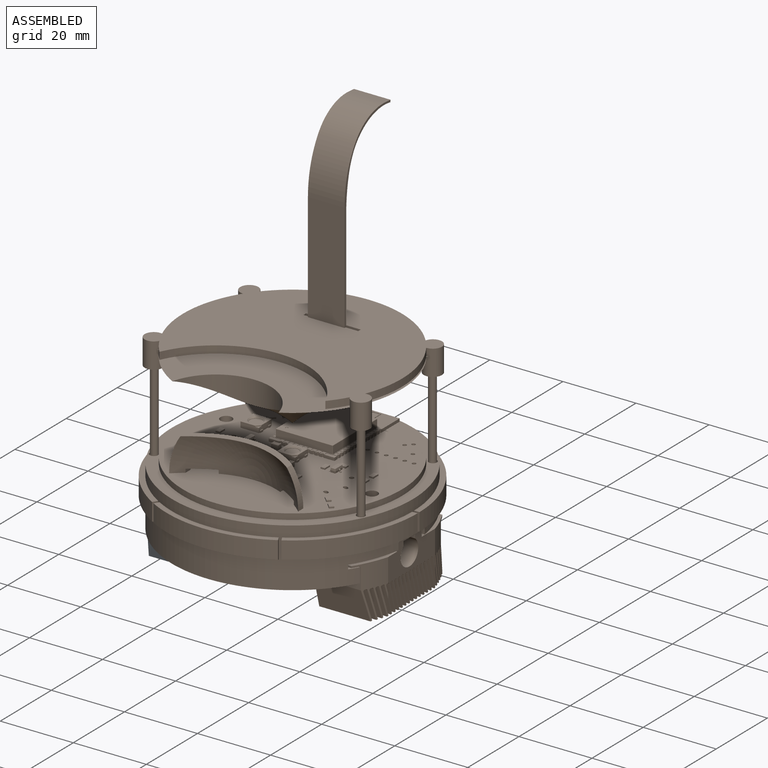
[diagram: assembled view]
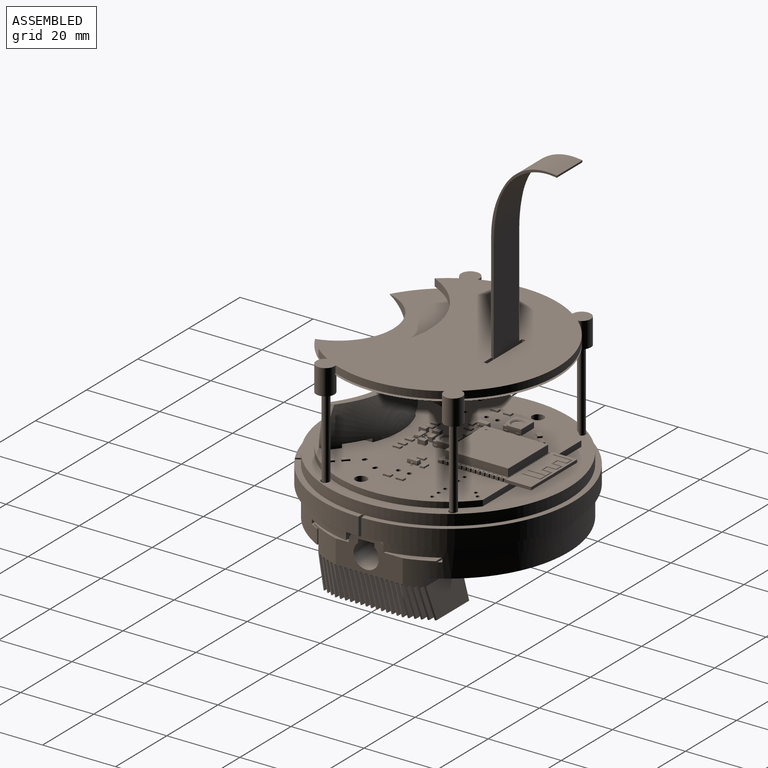
[diagram: assembled view, second angle]
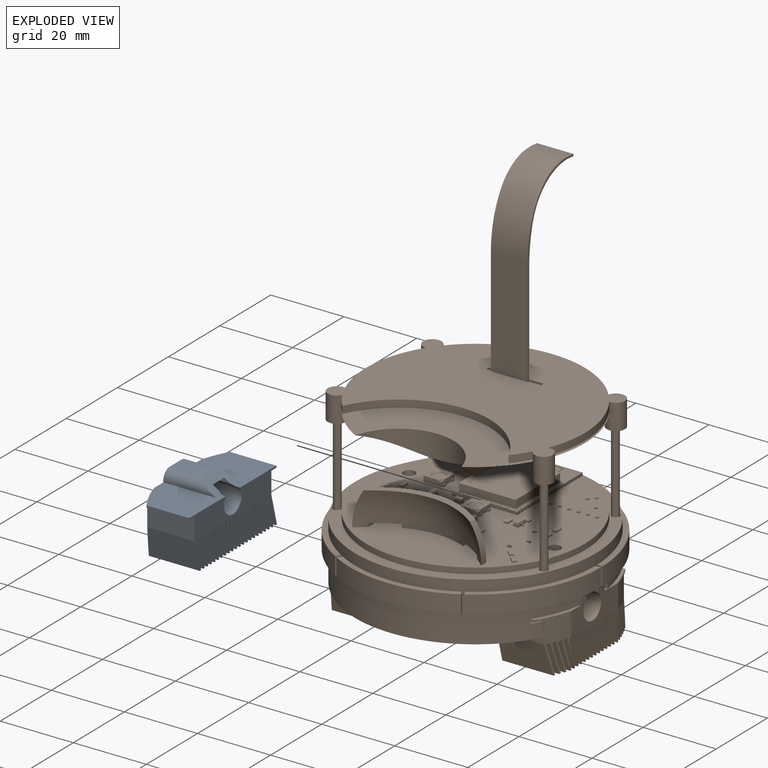
[diagram: exploded view]
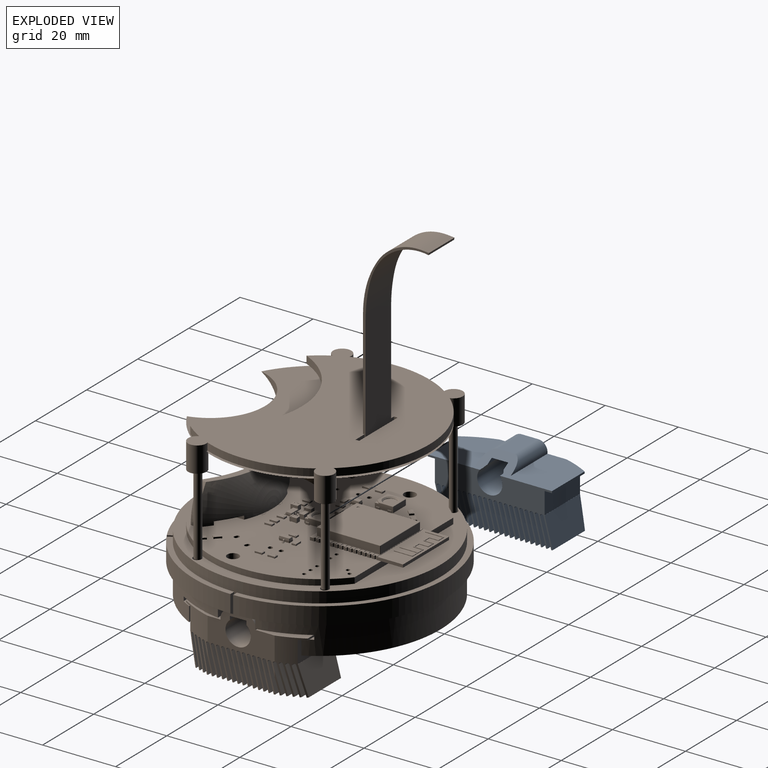
[diagram: exploded view, second angle]
FCSTD DOCUMENT  (FreeCAD 0.21R33771 (Git))
Label: whole_robot
License: All rights reserved
LicenseURL: https://en.wikipedia.org/wiki/All_rights_reserved
objects: Sketcher::SketchObject×31, Part::Feature×30, App::Part×30, PartDesign::Pocket×16, PartDesign::Pad×12, PartDesign::Body×9, PartDesign::ShapeBinder×4, PartDesign::Chamfer×1, PartDesign::Groove×1, PartDesign::Revolution×1, Part::Revolution×1, Part::Extrusion×1, PartDesign::FeatureBase×1, PartDesign::Mirrored×1, App::Link×1, Part::Mirroring×1
note: 141 computed .brp shape members not serialized (recipe doc carries the construction recipe); baked Part::Feature solids carry a one-line shape summary decoded from their .brp

FEATURE [Sketcher::SketchObject] Sketch001
  FullyConstrained = false
  MapMode = 5
  Support = -> [XY_Plane030]
  sketch-geometry (1):
    g0: Circle CenterX=0 CenterY=0 CenterZ=0 NormalX=0 NormalY=0 NormalZ=1 AngleXU=0 Radius=33
  constraints (2):
    c: Coincident(g0,g-1)
    c: Radius(g0) = 33
FEATURE [PartDesign::Pad] Pad
  AllowMultiFace = false
  Direction = (0,0,1)
  Length = 7.5
  Length2 = 100
  Profile = -> Sketch001
  ReferenceAxis = -> Sketch001 [N_Axis]
  Type = 0
FEATURE [Sketcher::SketchObject] Sketch002
  FullyConstrained = true
  MapMode = 5
  Placement = pos=(0,0,7.5) rot=(0,0,1;0rad)
  Support = -> [Pad]
  sketch-geometry (1):
    g0: Circle CenterX=0 CenterY=0 CenterZ=0 NormalX=0 NormalY=0 NormalZ=1 AngleXU=0 Radius=34.5
  constraints (2):
    c: Radius(g0) = 34.5
    c: Coincident(g0,g-1)
FEATURE [PartDesign::Pad] Pad001
  AllowMultiFace = false
  BaseFeature = -> Pad
  Direction = (0,0,1)
  Length = 5.5
  Length2 = 100
  Profile = -> Sketch002
  ReferenceAxis = -> Sketch002 [N_Axis]
  Type = 0
FEATURE [Sketcher::SketchObject] Sketch003
  FullyConstrained = true
  MapMode = 5
  Placement = pos=(0,0,13) rot=(0,0,1;0rad)
  Support = -> [Pad001]
  sketch-geometry (1):
    g0: Circle CenterX=0 CenterY=0 CenterZ=0 NormalX=0 NormalY=0 NormalZ=1 AngleXU=0 Radius=33
  constraints (2):
    c: Coincident(g0,g-1)
    c: Radius(g0) = 33
FEATURE [PartDesign::Pad] Pad002
  AllowMultiFace = false
  BaseFeature = -> Pad001
  Direction = (0,0,1)
  Length = 3
  Length2 = 100
  Profile = -> Sketch003
  Type = 0
FEATURE [Sketcher::SketchObject] Sketch004
  AttachmentOffset = pos=(0,0,34) rot=(0,0,1;0rad)
  FullyConstrained = true
  MapMode = 5
  Placement = pos=(34,-7.5e-15,7.5e-15) rot=(0.57735,0.57735,0.57735;2.0944rad)
  Support = -> [YZ_Plane030]
  sketch-geometry (12):
    g0: LineSegment StartX=-15.375 StartY=0 StartZ=0 EndX=-15.375 EndY=4 EndZ=0
    g1: LineSegment StartX=-15.375 StartY=4 StartZ=0 EndX=-17.875 EndY=4 EndZ=0
    g2: LineSegment StartX=-17.875 StartY=4 StartZ=0 EndX=-17.875 EndY=5.17 EndZ=0
    g3: LineSegment StartX=-17.875 StartY=5.17 StartZ=0 EndX=-5.125 EndY=5.17 EndZ=0
    g4: LineSegment StartX=-5.125 StartY=5.17 StartZ=0 EndX=-5.125 EndY=7.5 EndZ=0
    g5: LineSegment StartX=-5.125 StartY=7.5 StartZ=0 EndX=5.125 EndY=7.5 EndZ=0
    g6: LineSegment StartX=5.125 StartY=7.5 StartZ=0 EndX=5.125 EndY=5.17 EndZ=0
    g7: LineSegment StartX=5.125 StartY=5.17 StartZ=0 EndX=17.875 EndY=5.17 EndZ=0
    g8: LineSegment StartX=17.875 StartY=5.17 StartZ=0 EndX=17.875 EndY=4 EndZ=0
    g9: LineSegment StartX=17.875 StartY=4 StartZ=0 EndX=15.375 EndY=4 EndZ=0
    g10: LineSegment StartX=15.375 StartY=4 StartZ=0 EndX=15.375 EndY=0 EndZ=0
    g11: LineSegment StartX=15.375 StartY=0 StartZ=0 EndX=-15.375 EndY=0 EndZ=0
  constraints (35):
    c: Coincident(g0,g1)
    c: Coincident(g1,g2)
    c: Coincident(g2,g3)
    c: Coincident(g3,g4)
    c: Coincident(g4,g5)
    c: Coincident(g5,g6)
    c: Coincident(g6,g7)
    c: Coincident(g7,g8)
    c: Coincident(g8,g9)
    c: Coincident(g9,g10)
    c: Coincident(g10,g11)
    c: Coincident(g11,g0)
    c: Horizontal(g5)
    c: Horizontal(g7)
    c: Horizontal(g9)
    c: Horizontal(g1)
    c: Horizontal(g3)
    c: Horizontal(g11)
    c: Vertical(g6)
    c: Vertical(g4)
    c: Vertical(g2)
    c: Vertical(g0)
    c: Vertical(g10)
    c: Vertical(g8)
    c: Symmetric(g10,g0,g-1)
    c: DistanceY(g10,g5) = 7.5
    c: DistanceY(g10,g10) = 4
    c: DistanceY(g8,g8) = 1.17
    c: DistanceX(g11,g11) = 30.75
    c: DistanceX(g9,g9) = 2.5
    c: Equal(g2,g8)
    c: Equal(g9,g1)
    c: Equal(g3,g7)
    c: Equal(g0,g10)
    c: DistanceX(g3,g6) = 10.25
FEATURE [PartDesign::Pocket] Pocket  label="Fot1"
  AllowMultiFace = false
  BaseFeature = -> Pad002
  Direction = (-1,2e-16,-3e-16)
  Length = 18
  Length2 = 100
  Profile = -> Sketch004
  Type = 4
FEATURE [Sketcher::SketchObject] Sketch005
  AttachmentOffset = pos=(0,0,-34) rot=(0,1,0;3.14159rad)
  FullyConstrained = true
  MapMode = 5
  Placement = pos=(-34,7.5e-15,-7.5e-15) rot=(-0.57735,0.57735,0.57735;4.18879rad)
  Support = -> [YZ_Plane030]
  sketch-geometry (12):
    g0: LineSegment StartX=-15.375 StartY=0 StartZ=0 EndX=-15.375 EndY=4 EndZ=0
    g1: LineSegment StartX=-15.375 StartY=4 StartZ=0 EndX=-17.875 EndY=4 EndZ=0
    g2: LineSegment StartX=-17.875 StartY=4 StartZ=0 EndX=-17.875 EndY=5.17 EndZ=0
    g3: LineSegment StartX=-17.875 StartY=5.17 StartZ=0 EndX=-5.125 EndY=5.17 EndZ=0
    g4: LineSegment StartX=-5.125 StartY=5.17 StartZ=0 EndX=-5.125 EndY=7.5 EndZ=0
    g5: LineSegment StartX=-5.125 StartY=7.5 StartZ=0 EndX=5.125 EndY=7.5 EndZ=0
    g6: LineSegment StartX=5.125 StartY=7.5 StartZ=0 EndX=5.125 EndY=5.17 EndZ=0
    g7: LineSegment StartX=5.125 StartY=5.17 StartZ=0 EndX=17.875 EndY=5.17 EndZ=0
    g8: LineSegment StartX=17.875 StartY=5.17 StartZ=0 EndX=17.875 EndY=4 EndZ=0
    g9: LineSegment StartX=17.875 StartY=4 StartZ=0 EndX=15.375 EndY=4 EndZ=0
    g10: LineSegment StartX=15.375 StartY=4 StartZ=0 EndX=15.375 EndY=0 EndZ=0
    g11: LineSegment StartX=15.375 StartY=0 StartZ=0 EndX=-15.375 EndY=0 EndZ=0
  constraints (35):
    c: Coincident(g0,g1)
    c: Coincident(g1,g2)
    c: Coincident(g2,g3)
    c: Coincident(g3,g4)
    c: Coincident(g4,g5)
    c: Coincident(g5,g6)
    c: Coincident(g6,g7)
    c: Coincident(g7,g8)
    c: Coincident(g8,g9)
    c: Coincident(g9,g10)
    c: Coincident(g10,g11)
    c: Coincident(g11,g0)
    c: Horizontal(g5)
    c: Horizontal(g7)
    c: Horizontal(g9)
    c: Horizontal(g11)
    c: Horizontal(g1)
    c: Horizontal(g3)
    c: Vertical(g4)
    c: Vertical(g2)
    c: Vertical(g0)
    c: Vertical(g10)
    c: Vertical(g8)
    c: Vertical(g6)
    c: Equal(g7,g3)
    c: Equal(g2,g8)
    c: Equal(g9,g1)
    c: Equal(g0,g10)
    c: Symmetric(g10,g0,g-1)
    c: DistanceY(g10,g5) = 7.5
    c: DistanceY(g8,g8) = 1.17
    c: DistanceY(g10,g10) = 4
    c: DistanceX(g11,g11) = 30.75
    c: DistanceX(g1,g1) = 2.5
    c: DistanceX(g5,g5) = 10.25
FEATURE [PartDesign::Pocket] Pocket001  label="Fot2"
  AllowMultiFace = false
  BaseFeature = -> Pocket
  Direction = (1,-4e-16,2e-16)
  Length = 18
  Length2 = 100
  Profile = -> Sketch005
  Type = 4
FEATURE [Sketcher::SketchObject] Sketch020
  FullyConstrained = true
  MapMode = 5
  Placement = pos=(0,0,16) rot=(0,0,1;0rad)
  sketch-geometry (4):
    g0: ArcOfCircle CenterX=0 CenterY=0 CenterZ=0 NormalX=0 NormalY=0 NormalZ=1 AngleXU=0 Radius=22 StartAngle=1.09893 EndAngle=2.04266
    g1: ArcOfCircle CenterX=0 CenterY=0 CenterZ=0 NormalX=0 NormalY=0 NormalZ=1 AngleXU=0 Radius=22 StartAngle=4.24053 EndAngle=5.18425
    g2: LineSegment StartX=-10 StartY=19.5959 StartZ=0 EndX=-10 EndY=-19.5959 EndZ=0
    g3: LineSegment StartX=10 StartY=19.5959 StartZ=0 EndX=10 EndY=-19.5959 EndZ=0
  constraints (12):
    c: Coincident(g2,g0)
    c: Coincident(g3,g0)
    c: Coincident(g3,g1)
    c: Coincident(g2,g1)
    c: Coincident(g1,g0)
    c: Coincident(g0,g-1)
    c: DistanceY(g0,g0) = 0
    c: DistanceY(g1,g1) = 0
    c: Vertical(g2)
    c: Radius(g0) = 22
    c: Radius(g1) = 22
    c: DistanceX(g0,g0) = 20
FEATURE [PartDesign::Pocket] Pocket007
  AllowMultiFace = false
  BaseFeature = -> Pocket001
  Direction = (0,0,-1)
  Length = 50
  Length2 = 100
  Profile = -> Sketch020
  ReferenceAxis = -> Sketch020 [N_Axis]
  Type = 4
FEATURE [Sketcher::SketchObject] Sketch037
  FullyConstrained = true
  MapMode = 5
  Placement = pos=(0,0,16) rot=(0,0,1;0rad)
  sketch-geometry (1):
    g0: Circle CenterX=0 CenterY=0 CenterZ=0 NormalX=0 NormalY=0 NormalZ=1 AngleXU=0 Radius=22
  constraints (2):
    c: Coincident(g0,g-1)
    c: Radius(g0) = 22
FEATURE [PartDesign::Pocket] Pocket016  label="MycketStortHål"
  BaseFeature = -> Pocket007
  Direction = (0,0,-1)
  Length = 14
  Length2 = 5
  Profile = -> Sketch037
  ReferenceAxis = -> Sketch037 [N_Axis]
  Type = 0
FEATURE [Sketcher::SketchObject] Sketch040
  FullyConstrained = true
  MapMode = 5
  Placement = pos=(0,0,16) rot=(0,0,1;0rad)
  sketch-geometry (4):
    g0: LineSegment StartX=-29.5804 StartY=-5 StartZ=0 EndX=-14 EndY=-5 EndZ=0
    g1: LineSegment StartX=-14 StartY=-5 StartZ=0 EndX=-14 EndY=-16 EndZ=0
    g2: LineSegment StartX=-14 StartY=-16 StartZ=0 EndX=-25.3772 EndY=-16 EndZ=0
    g3: ArcOfCircle CenterX=0 CenterY=0 CenterZ=0 NormalX=0 NormalY=0 NormalZ=1 AngleXU=0 Radius=30 StartAngle=3.30904 EndAngle=3.70413
  constraints (12):
    c: Coincident(g0,g1)
    c: Coincident(g1,g2)
    c: Horizontal(g0)
    c: Horizontal(g2)
    c: Vertical(g1)
    c: Coincident(g3,g-1)
    c: Coincident(g3,g2)
    c: Coincident(g3,g0)
    c: Radius(g3) = 30
    c: DistanceX(g0,g3) = 14
    c: DistanceY(g1,g1) = 11
    c: DistanceY(g0,g3) = 5
FEATURE [PartDesign::Pocket] Pocket019  label="HållTillInteJ"
  BaseFeature = -> Pocket016
  Direction = (0,0,-1)
  Length = 4
  Length2 = 5
  Profile = -> Sketch040
  ReferenceAxis = -> Sketch040 [N_Axis]
  Type = 0
FEATURE [Sketcher::SketchObject] Sketch041
  FullyConstrained = true
  MapMode = 5
  Placement = pos=(0,0,16) rot=(0,0,1;0rad)
  Support = -> [Pocket019]
  sketch-geometry (4):
    g0: LineSegment StartX=19.2614 StartY=23 StartZ=0 EndX=8.5 EndY=23 EndZ=0
    g1: LineSegment StartX=8.5 StartY=23 StartZ=0 EndX=8.5 EndY=8.5 EndZ=0
    g2: LineSegment StartX=8.5 StartY=8.5 StartZ=0 EndX=28.7706 EndY=8.5 EndZ=0
    g3: ArcOfCircle CenterX=0 CenterY=0 CenterZ=0 NormalX=0 NormalY=0 NormalZ=1 AngleXU=0 Radius=30 StartAngle=0.287268 EndAngle=0.873633
  constraints (12):
    c: Horizontal(g0)
    c: Coincident(g0,g1)
    c: Vertical(g1)
    c: Coincident(g1,g2)
    c: Horizontal(g2)
    c: Coincident(g3,g-1)
    c: Coincident(g3,g2)
    c: Radius(g3) = 30
    c: Coincident(g0,g3)
    c: DistanceX(g3,g1) = 8.5
    c: DistanceY(g3,g1) = 8.5
    c: DistanceY(g1,g1) = 14.5
FEATURE [PartDesign::Pocket] Pocket020
  BaseFeature = -> Pocket019
  Direction = (0,0,-1)
  Length = 4
  Length2 = 5
  Profile = -> Sketch041
  ReferenceAxis = -> Sketch041 [N_Axis]
  Type = 0
FEATURE [Sketcher::SketchObject] Sketch042
  FullyConstrained = true
  MapMode = 5
  Placement = pos=(0,0,16) rot=(0,0,1;0rad)
  Support = -> [Pocket020]
  sketch-geometry (2):
    g0: Circle CenterX=-23.833 CenterY=8 CenterZ=0 NormalX=0 NormalY=0 NormalZ=1 AngleXU=0 Radius=1.5
    g1: Circle CenterX=25.75 CenterY=-5.75 CenterZ=0 NormalX=0 NormalY=0 NormalZ=1 AngleXU=0 Radius=1.5
  constraints (6):
    c: Radius(g1) = 1.5
    c: Radius(g0) = 1.5
    c: DistanceX(g-1,g1) = 25.75
    c: DistanceX(g0,g-1) = 23.833
    c: DistanceY(g1,g-1) = 5.75
    c: DistanceY(g-1,g0) = 8
FEATURE [PartDesign::Pocket] Pocket021
  BaseFeature = -> Pocket020
  Direction = (0,0,-1)
  Length = 8
  Length2 = 5
  Profile = -> Sketch042
  ReferenceAxis = -> Sketch042 [N_Axis]
  Type = 0
FEATURE [PartDesign::Chamfer] Chamfer
  Angle = 45
  Base = -> Pocket021 [Edge5,Edge4,Edge6,Edge7,Edge3]
  BaseFeature = -> Pocket021
  ChamferType = 1
  FlipDirection = false
  Size = 0.7
  Size2 = 1.499
  SupportTransform = false
  UseAllEdges = false
FEATURE [Sketcher::SketchObject] Sketch043
  FullyConstrained = false
  MapMode = 5
  Placement = pos=(0,0,16) rot=(0,0,1;0rad)
  Support = -> [Chamfer]
  sketch-geometry (16):
    g0: ArcOfCircle CenterX=0 CenterY=0 CenterZ=0 NormalX=0 NormalY=0 NormalZ=1 AngleXU=0 Radius=34.5 StartAngle=3.13009 EndAngle=3.15215
    g1: ArcOfCircle CenterX=0 CenterY=0 CenterZ=0 NormalX=0 NormalY=0 NormalZ=1 AngleXU=0 Radius=34.5 StartAngle=4.17349 EndAngle=4.19489
    g2: ArcOfCircle CenterX=0 CenterY=0 CenterZ=0 NormalX=0 NormalY=0 NormalZ=1 AngleXU=0 Radius=34.5 StartAngle=5.22989 EndAngle=5.25129
    g3: ArcOfCircle CenterX=0 CenterY=0 CenterZ=0 NormalX=0 NormalY=0 NormalZ=1 AngleXU=0 Radius=34.5 StartAngle=6.27262 EndAngle=6.29469
    g4: ArcOfCircle CenterX=0 CenterY=0 CenterZ=0 NormalX=0 NormalY=0 NormalZ=1 AngleXU=0 Radius=33 StartAngle=6.27196 EndAngle=6.29469
    g5: ArcOfCircle CenterX=0 CenterY=0 CenterZ=0 NormalX=0 NormalY=0 NormalZ=1 AngleXU=0 Radius=33 StartAngle=5.22923 EndAngle=5.25195
    g6: ArcOfCircle CenterX=0 CenterY=0 CenterZ=0 NormalX=0 NormalY=0 NormalZ=1 AngleXU=0 Radius=33 StartAngle=4.17282 EndAngle=4.19555
    g7: ArcOfCircle CenterX=0 CenterY=0 CenterZ=0 NormalX=0 NormalY=0 NormalZ=1 AngleXU=0 Radius=33 StartAngle=3.13009 EndAngle=3.15282
    g8: LineSegment StartX=-34.4977 StartY=0.396892 StartZ=0 EndX=-32.9978 EndY=0.379644 EndZ=0
    g9: LineSegment StartX=-34.4981 StartY=-0.36438 StartZ=0 EndX=-32.9979 EndY=-0.370356 EndZ=0
    g10: LineSegment StartX=32.9978 StartY=0.379644 StartZ=0 EndX=34.4977 EndY=0.396892 EndZ=0
    g11: LineSegment StartX=32.9979 StartY=-0.370356 StartZ=0 EndX=34.4981 EndY=-0.36438 EndZ=0
    g12: LineSegment StartX=16.9542 StartY=-28.3118 StartZ=0 EndX=17.7052 EndY=-29.6104 EndZ=0
    g13: LineSegment StartX=16.3064 StartY=-28.6897 StartZ=0 EndX=17.0674 EndY=-29.9825 EndZ=0
    g14: LineSegment StartX=-16.3064 StartY=-28.6897 StartZ=0 EndX=-17.0674 EndY=-29.9825 EndZ=0
    g15: LineSegment StartX=-17.7052 StartY=-29.6104 StartZ=0 EndX=-16.9542 EndY=-28.3118 EndZ=0
  constraints (44):
    c: Coincident(g0,g-1)
    c: Coincident(g1,g0)
    c: Coincident(g2,g0)
    c: Coincident(g3,g0)
    c: Coincident(g4,g0)
    c: Coincident(g5,g0)
    c: Coincident(g6,g0)
    c: Coincident(g7,g0)
    c: Coincident(g8,g0)
    c: Coincident(g8,g7)
    c: Coincident(g9,g0)
    c: Coincident(g9,g7)
    c: Coincident(g10,g4)
    c: Coincident(g10,g3)
    c: Coincident(g11,g4)
    c: Coincident(g11,g3)
    c: Coincident(g12,g5)
    c: Coincident(g13,g5)
    c: Coincident(g13,g2)
    c: Coincident(g14,g6)
    c: Coincident(g14,g1)
    c: Coincident(g15,g1)
    c: Coincident(g15,g6)
    c: Radius(g4) = 33
    c: Radius(g3) = 34.5
    c: Radius(g2) = 34.5
    c: Radius(g5) = 33
    c: Radius(g6) = 33
    c: Radius(g1) = 34.5
    c: Radius(g7) = 33
    c: Radius(g0) = 34.5
    c: DistanceY(g4,g7) = 0
    c: DistanceY(g0,g3) = 0
    c: Equal(g11,g9)
    c: Equal(g9,g15)
    c: Equal(g9,g14)
    c: Coincident(g12,g2)
    c: Equal(g12,g14)
    c: Equal(g13,g15)
    c: DistanceY(g4,g7) = 0
    c: DistanceY(g6,g5) = 0
    c: DistanceY(g6,g5) = 0
    c: Distance(g6,g6) = 0.75
    c: Distance(g7,g7) = 0.75
FEATURE [PartDesign::Pocket] Pocket022
  BaseFeature = -> Chamfer
  Direction = (0,0,-1)
  Length = 50
  Length2 = 5
  Profile = -> Sketch043
  ReferenceAxis = -> Sketch043 [N_Axis]
  Type = 0
FEATURE [Sketcher::SketchObject] Sketch044
  FullyConstrained = true
  MapMode = 5
  Placement = pos=(0,0,16) rot=(0,0,1;0rad)
  Support = -> [Pocket022]
  sketch-geometry (4):
    g0: Circle CenterX=-28.3406 CenterY=-13.75 CenterZ=0 NormalX=0 NormalY=0 NormalZ=1 AngleXU=0 Radius=1.125
    g1: Circle CenterX=-25.1247 CenterY=19 CenterZ=0 NormalX=0 NormalY=0 NormalZ=1 AngleXU=0 Radius=1.125
    g2: Circle CenterX=25.1247 CenterY=19 CenterZ=0 NormalX=0 NormalY=0 NormalZ=1 AngleXU=0 Radius=1.125
    g3: Circle CenterX=28.3406 CenterY=-13.75 CenterZ=0 NormalX=0 NormalY=0 NormalZ=1 AngleXU=0 Radius=1.125
  constraints (12):
    c: Distance(g1,g-1) = 31.5
    c: Distance(g-1,g2) = 31.5
    c: Distance(g-1,g3) = 31.5
    c: Distance(g0,g-1) = 31.5
    c: Radius(g2) = 1.125
    c: Radius(g3) = 1.125
    c: Radius(g0) = 1.125
    c: Radius(g1) = 1.125
    c: DistanceY(g-1,g2) = 19
    c: DistanceY(g-1,g1) = 19
    c: DistanceY(g0,g-1) = 13.75
    c: DistanceY(g3,g-1) = 13.75
FEATURE [PartDesign::Pocket] Pocket023  label="Ben001"
  BaseFeature = -> Pocket022
  Direction = (0,0,-1)
  Length = 5
  Length2 = 5
  Profile = -> Sketch044
  ReferenceAxis = -> Sketch044 [N_Axis]
  Type = 0
FEATURE [PartDesign::ShapeBinder] CopyPad013
  TraceSupport = false
FEATURE [PartDesign::ShapeBinder] CopyPad014
  TraceSupport = false
FEATURE [PartDesign::ShapeBinder] CopyPad015
  TraceSupport = false
FEATURE [PartDesign::Body] Body001  label="MainBody"
  Group = -> [Sketch001,Pad,Sketch002,Pad001,Sketch003,Pad002,Sketch004,Pocket,Sketch005,Pocket001,Sketch020,Pocket007,Sketch037,Pocket016,Sketch040,Pocket019,Sketch041,Pocket020,Sketch042,Pocket021,Chamfer,Sketch043,Pocket022,Sketch044,Pocket023,CopyPad013,CopyPad014,CopyPad015]
  Origin = -> Origin030
  Placement = pos=(150,-100,-16) rot=(0,0,1;0rad)
  Tip = -> Pocket023
FEATURE [Sketcher::SketchObject] Sketch046
  FullyConstrained = true
  MapMode = 5
  Support = -> [XY_Plane035]
  sketch-geometry (1):
    g0: Circle CenterX=0 CenterY=0 CenterZ=0 NormalX=0 NormalY=0 NormalZ=1 AngleXU=0 Radius=30
  constraints (2):
    c: Coincident(g0,g-1)
    c: Radius(g0) = 30
FEATURE [PartDesign::Pad] Pad010
  Direction = (0,0,1)
  Length = 2
  Length2 = 10
  Profile = -> Sketch046
  ReferenceAxis = -> Sketch046 [N_Axis]
  Type = 0
FEATURE [Sketcher::SketchObject] Sketch047
  FullyConstrained = true
  MapMode = 5
  Placement = pos=(0,0,2) rot=(0,0,1;0rad)
  Support = -> [Pad010]
  sketch-geometry (4):
    g0: Circle CenterX=-25.1247 CenterY=19 CenterZ=0 NormalX=0 NormalY=0 NormalZ=1 AngleXU=0 Radius=2.5
    g1: Circle CenterX=25.1247 CenterY=19 CenterZ=0 NormalX=0 NormalY=0 NormalZ=1 AngleXU=0 Radius=2.5
    g2: Circle CenterX=28.3406 CenterY=-13.75 CenterZ=0 NormalX=0 NormalY=0 NormalZ=1 AngleXU=0 Radius=2.5
    g3: Circle CenterX=-28.3406 CenterY=-13.75 CenterZ=0 NormalX=0 NormalY=0 NormalZ=1 AngleXU=0 Radius=2.5
  constraints (10):
    c: Equal(g1,g2)
    c: Equal(g1,g3)
    c: Equal(g1,g0)
    c: Radius(g1) = 2.5
    c: Symmetric(g1,g0,g-2)
    c: Symmetric(g2,g3,g-2)
    c: Distance(g1,g-1) = 31.5
    c: Distance(g2,g-1) = 31.5
    c: DistanceY(g2,g-1) = 13.75
    c: DistanceY(g-1,g1) = 19
FEATURE [PartDesign::Pad] Pad011
  BaseFeature = -> Pad010
  Direction = (0,0,1)
  Length = 0
  Length2 = 7
  Profile = -> Sketch047
  ReferenceAxis = -> Sketch047 [N_Axis]
  Type = 4
FEATURE [Sketcher::SketchObject] Sketch048
  FullyConstrained = true
  MapMode = 5
  Placement = pos=(0,0,-5) rot=(1,0,0;3.14159rad)
  Support = -> [Pad011]
  sketch-geometry (4):
    g0: Circle CenterX=-25.1247 CenterY=-19 CenterZ=0 NormalX=0 NormalY=0 NormalZ=1 AngleXU=0 Radius=1.5
    g1: Circle CenterX=25.1247 CenterY=-19 CenterZ=0 NormalX=0 NormalY=0 NormalZ=1 AngleXU=0 Radius=1.5
    g2: Circle CenterX=28.3406 CenterY=13.75 CenterZ=0 NormalX=0 NormalY=0 NormalZ=1 AngleXU=0 Radius=1.5
    g3: Circle CenterX=-28.3406 CenterY=13.75 CenterZ=0 NormalX=0 NormalY=0 NormalZ=1 AngleXU=0 Radius=1.5
  constraints (10):
    c: Equal(g0,g1)
    c: Equal(g0,g2)
    c: Equal(g0,g3)
    c: Radius(g0) = 1.5
    c: Distance(g2,g-1) = 31.5
    c: Distance(g-1,g1) = 31.5
    c: Symmetric(g2,g3,g-2)
    c: Symmetric(g1,g0,g-2)
    c: DistanceY(g-1,g2) = 13.75
    c: DistanceY(g1,g-1) = 19
FEATURE [PartDesign::Pocket] Pocket024
  BaseFeature = -> Pad011
  Direction = (0,0,1)
  Length = 5
  Length2 = 5
  Profile = -> Sketch048
  ReferenceAxis = -> Sketch048 [N_Axis]
  Type = 0
FEATURE [Sketcher::SketchObject] Sketch049
  FullyConstrained = true
  MapMode = 5
  Placement = pos=(0,0,0) rot=(1,0,0;1.5708rad)
  Support = -> [XZ_Plane035]
  sketch-geometry (3):
    g0: LineSegment StartX=0 StartY=0 StartZ=0 EndX=-30.5 EndY=0 EndZ=0
    g1: LineSegment StartX=-30.5 StartY=0 StartZ=0 EndX=0 EndY=-18 EndZ=0
    g2: LineSegment StartX=0 StartY=-18 StartZ=0 EndX=0 EndY=0 EndZ=0
  constraints (8):
    c: Coincident(g-1,g0)
    c: Horizontal(g0)
    c: Coincident(g0,g1)
    c: PointOnObject(g1,g-2)
    c: Coincident(g1,g2)
    c: Coincident(g2,g0)
    c: DistanceX(g0,g0) = 30.5
    c: DistanceY(g2,g2) = 18
FEATURE [PartDesign::Groove] Groove
  Angle = 360
  Axis = (0,2e-16,1)
  Base = (0,0,0)
  BaseFeature = -> Pocket024
  Profile = -> Sketch049
  ReferenceAxis = -> Sketch049 [V_Axis]
  Reversed = true
FEATURE [Sketcher::SketchObject] Sketch050
  FullyConstrained = true
  MapMode = 5
  Placement = pos=(0,0,2) rot=(0,0,1;0rad)
  Support = -> [Groove]
  sketch-geometry (4):
    g0: LineSegment StartX=-7.5 StartY=16 StartZ=0 EndX=7.5 EndY=16 EndZ=0
    g1: LineSegment StartX=7.5 StartY=16 StartZ=0 EndX=7.5 EndY=15 EndZ=0
    g2: LineSegment StartX=7.5 StartY=15 StartZ=0 EndX=-7.5 EndY=15 EndZ=0
    g3: LineSegment StartX=-7.5 StartY=15 StartZ=0 EndX=-7.5 EndY=16 EndZ=0
  constraints (12):
    c: Coincident(g0,g1)
    c: Coincident(g1,g2)
    c: Coincident(g2,g3)
    c: Coincident(g3,g0)
    c: Horizontal(g0)
    c: Horizontal(g2)
    c: Vertical(g1)
    c: Vertical(g3)
    c: DistanceY(g-1,g2) = 15
    c: DistanceX(g2,g2) = 15
    c: DistanceY(g1,g1) = 1
    c: DistanceX(g2,g-1) = 7.5
FEATURE [PartDesign::Pocket] Pocket025
  BaseFeature = -> Groove
  Direction = (0,0,-1)
  Length = 5
  Length2 = 5
  Profile = -> Sketch050
  ReferenceAxis = -> Sketch050 [N_Axis]
  Type = 0
FEATURE [Sketcher::SketchObject] Sketch051
  ExternalGeometry = -> [Pocket025]
  FullyConstrained = true
  MapMode = 5
  Placement = pos=(0,0,0) rot=(1,0,0;3.14159rad)
  Support = -> [Pocket025]
  sketch-geometry (8):
    g0: LineSegment StartX=-8.5 StartY=-14 StartZ=0 EndX=8.5 EndY=-14 EndZ=0
    g1: LineSegment StartX=8.5 StartY=-14 StartZ=0 EndX=8.5 EndY=-17 EndZ=0
    g2: LineSegment StartX=8.5 StartY=-17 StartZ=0 EndX=-8.5 EndY=-17 EndZ=0
    g3: LineSegment StartX=-8.5 StartY=-17 StartZ=0 EndX=-8.5 EndY=-14 EndZ=0
    g4: LineSegment StartX=-7.5 StartY=-15 StartZ=0 EndX=7.5 EndY=-15 EndZ=0
    g5: LineSegment StartX=7.5 StartY=-15 StartZ=0 EndX=7.5 EndY=-16 EndZ=0
    g6: LineSegment StartX=7.5 StartY=-16 StartZ=0 EndX=-7.5 EndY=-16 EndZ=0
    g7: LineSegment StartX=-7.5 StartY=-16 StartZ=0 EndX=-7.5 EndY=-15 EndZ=0
  constraints (22):
    c: Coincident(g0,g1)
    c: Coincident(g1,g2)
    c: Coincident(g2,g3)
    c: Coincident(g3,g0)
    c: Horizontal(g0)
    c: Horizontal(g2)
    c: Vertical(g1)
    c: Vertical(g3)
    c: Coincident(g4,g5)
    c: Coincident(g5,g6)
    c: Coincident(g6,g7)
    c: Coincident(g7,g4)
    c: Horizontal(g4)
    c: Horizontal(g6)
    c: Vertical(g5)
    c: Vertical(g7)
    c: Coincident(g4,g-5)
    c: Coincident(g5,g-6)
    c: DistanceX(g4,g0) = 1
    c: DistanceX(g0,g4) = 1
    c: DistanceY(g4,g0) = 1
    c: DistanceY(g1,g1) = 3
FEATURE [PartDesign::Pad] Pad012
  BaseFeature = -> Pocket025
  Direction = (0,0,-1)
  Length = 3.3
  Length2 = 10
  Profile = -> Sketch051
  ReferenceAxis = -> Sketch051 [N_Axis]
  Type = 0
FEATURE [Sketcher::SketchObject] Sketch052
  FullyConstrained = true
  MapMode = 5
  Placement = pos=(0,0,2) rot=(0,0,1;0rad)
  Support = -> [Pad012]
  sketch-geometry (1):
    g0: Circle CenterX=0 CenterY=-30 CenterZ=0 NormalX=0 NormalY=0 NormalZ=1 AngleXU=0 Radius=25
  constraints (3):
    c: PointOnObject(g0,g-2)
    c: DistanceY(g0,g-1) = 30
    c: Radius(g0) = 25
FEATURE [PartDesign::Pocket] Pocket026
  BaseFeature = -> Pad012
  Direction = (0,0,-1)
  Length = 5
  Length2 = 5
  Profile = -> Sketch052
  ReferenceAxis = -> Sketch052 [N_Axis]
  Type = 0
FEATURE [PartDesign::Body] Body006  label="Hatt2"
  Group = -> [Sketch046,Pad010,Sketch047,Pad011,Sketch048,Pocket024,Sketch049,Groove,Sketch050,Pocket025,Sketch051,Pad012,Sketch052,Pocket026]
  Origin = -> Origin035
  Placement = pos=(150,-100,27) rot=(0,0,1;0rad)
  Tip = -> Pocket026
FEATURE [PartDesign::ShapeBinder] CopyPocket024
  TraceSupport = false
FEATURE [Sketcher::SketchObject] Sketch060
  FullyConstrained = true
  Placement = pos=(0,0,0) rot=(1,0,0;1.5708rad)
  sketch-geometry (5):
    g0: ArcOfParabola CenterX=-5 CenterY=0 CenterZ=0 NormalX=0 NormalY=0 NormalZ=1 Focal=5 AngleXU=0 StartAngle=10 EndAngle=26.4575
    g1: GeomPoint X=0 Y=0 Z=0
    g2: LineSegment StartX=-5 StartY=0 StartZ=0 EndX=0 EndY=0 EndZ=0
    g3: LineSegment StartX=0 StartY=10 StartZ=0 EndX=0 EndY=26.4575 EndZ=0
    g4: LineSegment StartX=0 StartY=26.4575 StartZ=0 EndX=30 EndY=26.4575 EndZ=0
  constraints (13):
    c: InternalAlignment(g1,g0)
    c: InternalAlignment(g2,g0)
    c: DistanceX(g1,g-1) = 0
    c: Horizontal(g2)
    c: DistanceY(g-1,g1) = 0
    c: DistanceX(g0,g1) = 0
    c: DistanceX(g0,g0) = 30
    c: DistanceY(g1,g0) = 10
    c: Coincident(g3,g0)
    c: Vertical(g3)
    c: Coincident(g4,g0)
    c: Horizontal(g4)
    c: Coincident(g3,g4)
FEATURE [PartDesign::Revolution] Revolution003
  Angle = 360
  Axis = (0,0,1)
  Base = (0,0,0)
  Placement = pos=(0,0,0) rot=(1,0,0;1.5708rad)
  Profile = -> Sketch060
  ReferenceAxis = -> Sketch060 [V_Axis]
  Reversed = true
FEATURE [Sketcher::SketchObject] Sketch061
  FullyConstrained = true
  MapMode = 5
  Placement = pos=(0,5.8e-15,26.4575) rot=(0,0,1;3.14159rad)
  Support = -> [Revolution003]
  sketch-geometry (4):
    g0: LineSegment StartX=8.75 StartY=-18.25 StartZ=0 EndX=-8.75 EndY=-18.25 EndZ=0
    g1: LineSegment StartX=-8.75 StartY=-18.25 StartZ=0 EndX=-8.75 EndY=-14.75 EndZ=0
    g2: LineSegment StartX=-8.75 StartY=-14.75 StartZ=0 EndX=8.75 EndY=-14.75 EndZ=0
    g3: LineSegment StartX=8.75 StartY=-14.75 StartZ=0 EndX=8.75 EndY=-18.25 EndZ=0
  constraints (12):
    c: Coincident(g0,g1)
    c: Coincident(g1,g2)
    c: Coincident(g2,g3)
    c: Coincident(g3,g0)
    c: Horizontal(g0)
    c: Horizontal(g2)
    c: Vertical(g1)
    c: Vertical(g3)
    c: DistanceY(g1,g1) = 3.5
    c: DistanceX(g2,g2) = 17.5
    c: DistanceY(g2,g-1) = 14.75
    c: DistanceX(g-1,g2) = 8.75
FEATURE [PartDesign::Pocket] Pocket031
  BaseFeature = -> Revolution003
  Direction = (0,-4e-16,-1)
  Length = 4
  Length2 = 5
  Placement = pos=(0,0,0) rot=(1,0,0;1.5708rad)
  Profile = -> Sketch061
  ReferenceAxis = -> Sketch061 [N_Axis]
  Type = 0
FEATURE [Sketcher::SketchObject] Sketch062
  ExternalGeometry = -> [Pocket031]
  FullyConstrained = false
  MapMode = 5
  Placement = pos=(0,5.8e-15,26.4575) rot=(0,0,1;3.14159rad)
  Support = -> [Pocket031]
  sketch-geometry (2):
    g0: Circle CenterX=285.182 CenterY=136.159 CenterZ=0 NormalX=0 NormalY=0 NormalZ=1 AngleXU=0 Radius=13.1656
    g1: Circle CenterX=0 CenterY=30 CenterZ=0 NormalX=0 NormalY=0 NormalZ=1 AngleXU=0 Radius=15
  constraints (3):
    c: PointOnObject(g1,g-3)
    c: DistanceX(g1,g-3) = 0
    c: Radius(g1) = 15
FEATURE [PartDesign::Pocket] Pocket032
  BaseFeature = -> Pocket031
  Direction = (0,-6e-16,-1)
  Length = 50
  Length2 = 5
  Placement = pos=(0,0,0) rot=(1,0,0;1.5708rad)
  Profile = -> Sketch062
  ReferenceAxis = -> Sketch062 [N_Axis]
  Type = 0
FEATURE [PartDesign::Body] Body008  label="Kon2"
  Group = -> [Sketch060,Revolution003,CopyPocket024,Sketch061,Pocket031,Sketch062,Pocket032]
  Origin = -> Origin037
  Placement = pos=(150,-100,0) rot=(0,0,1;0rad)
  Tip = -> Pocket032
FEATURE [Sketcher::SketchObject] Sketch064
  FullyConstrained = false
  MapMode = 5
  Support = -> [XY_Plane038]
  sketch-geometry (1):
    g0: Circle CenterX=0 CenterY=0 CenterZ=0 NormalX=0 NormalY=0 NormalZ=1 AngleXU=0 Radius=1
  constraints (1):
    c: Radius(g0) = 1
FEATURE [PartDesign::Pad] Pad015
  Direction = (0,0,1)
  Length = 25
  Length2 = 10
  Profile = -> Sketch064
  ReferenceAxis = -> Sketch064 [N_Axis]
  Type = 0
FEATURE [PartDesign::Body] Body009
  Group = -> [Sketch064,Pad015]
  Origin = -> Origin038
  Placement = pos=(175,-81,0) rot=(0,0,1;0rad)
  Tip = -> Pad015
FEATURE [Sketcher::SketchObject] Sketch065
  FullyConstrained = false
  MapMode = 5
  Support = -> [XY_Plane039]
  sketch-geometry (1):
    g0: Circle CenterX=0 CenterY=0 CenterZ=0 NormalX=0 NormalY=0 NormalZ=1 AngleXU=0 Radius=1
  constraints (1):
    c: Radius(g0) = 1
FEATURE [PartDesign::Pad] Pad016
  Direction = (0,0,1)
  Length = 25
  Length2 = 10
  Profile = -> Sketch065
  ReferenceAxis = -> Sketch065 [N_Axis]
  Type = 0
FEATURE [PartDesign::Body] Body010
  Group = -> [Sketch065,Pad016]
  Origin = -> Origin039
  Placement = pos=(125,-81,0) rot=(0,0,1;0rad)
  Tip = -> Pad016
FEATURE [Sketcher::SketchObject] Sketch066
  FullyConstrained = false
  MapMode = 5
  Support = -> [XY_Plane040]
  sketch-geometry (1):
    g0: Circle CenterX=0 CenterY=0 CenterZ=0 NormalX=0 NormalY=0 NormalZ=1 AngleXU=0 Radius=1
  constraints (1):
    c: Radius(g0) = 1
FEATURE [PartDesign::Pad] Pad017
  Direction = (0,0,1)
  Length = 25
  Length2 = 10
  Profile = -> Sketch066
  ReferenceAxis = -> Sketch066 [N_Axis]
  Type = 0
FEATURE [PartDesign::Body] Body011
  Group = -> [Sketch066,Pad017]
  Origin = -> Origin040
  Placement = pos=(178.3,-113.6,0) rot=(0,0,1;0rad)
  Tip = -> Pad017
FEATURE [Sketcher::SketchObject] Sketch067
  FullyConstrained = false
  MapMode = 5
  Support = -> [XY_Plane041]
  sketch-geometry (1):
    g0: Circle CenterX=0 CenterY=0 CenterZ=0 NormalX=0 NormalY=0 NormalZ=1 AngleXU=0 Radius=1
  constraints (1):
    c: Radius(g0) = 1
FEATURE [PartDesign::Pad] Pad018
  Direction = (0,0,1)
  Length = 25
  Length2 = 10
  Profile = -> Sketch067
  ReferenceAxis = -> Sketch067 [N_Axis]
  Type = 0
FEATURE [PartDesign::Body] Body012
  Group = -> [Sketch067,Pad018]
  Origin = -> Origin041
  Placement = pos=(121.7,-113.6,0) rot=(0,0,1;0rad)
  Tip = -> Pad018
FEATURE [Sketcher::SketchObject] Sketch068
  FullyConstrained = false
  MapMode = 5
  Placement = pos=(0,0,0) rot=(0.57735,0.57735,0.57735;2.0944rad)
  Support = -> [YZ_Plane042]
  sketch-geometry (13):
    g0: LineSegment StartX=8.70992 StartY=10.8344 StartZ=0 EndX=9.40089 EndY=10.8344 EndZ=0
    g1: LineSegment StartX=9.40089 StartY=10.8344 StartZ=0 EndX=9.40089 EndY=41.7637 EndZ=0
    g2: ArcOfCircle CenterX=-19.017 CenterY=41.7637 CenterZ=0 NormalX=0 NormalY=0 NormalZ=1 AngleXU=0 Radius=28.4179 StartAngle=0 EndAngle=0.217624
    g3: ArcOfCircle CenterX=-14.7649 CenterY=42.704 CenterZ=0 NormalX=0 NormalY=0 NormalZ=1 AngleXU=0 Radius=24.0631 StartAngle=0.217624 EndAngle=0.582157
    g4: ArcOfCircle CenterX=-5.5014 CenterY=48.8017 CenterZ=0 NormalX=0 NormalY=0 NormalZ=1 AngleXU=0 Radius=12.9728 StartAngle=0.582157 EndAngle=1.51211
    g5: ArcOfCircle CenterX=-5.69657 CenterY=45.4799 CenterZ=0 NormalX=0 NormalY=0 NormalZ=1 AngleXU=0 Radius=16.3003 StartAngle=1.51211 EndAngle=1.66427
    g6: LineSegment StartX=-7.21797 StartY=61.7091 StartZ=0 EndX=-8.6377 EndY=61.576 EndZ=0
    g7: LineSegment StartX=-8.6377 StartY=61.576 StartZ=0 EndX=-8.52927 EndY=61.0098 EndZ=0
    g8: ArcOfCircle CenterX=-6.03572 CenterY=47.9904 CenterZ=0 NormalX=0 NormalY=0 NormalZ=1 AngleXU=0 Radius=13.2561 StartAngle=1.45664 EndAngle=1.76003
    g9: ArcOfCircle CenterX=-6.07608 CenterY=47.6383 CenterZ=0 NormalX=0 NormalY=0 NormalZ=1 AngleXU=0 Radius=13.6104 StartAngle=0.475338 EndAngle=1.45664
    g10: ArcOfCircle CenterX=-11.0718 CenterY=45.0671 CenterZ=0 NormalX=0 NormalY=0 NormalZ=1 AngleXU=0 Radius=19.229 StartAngle=0.226084 EndAngle=0.475338
    g11: ArcOfCircle CenterX=-32.2363 CenterY=40.1989 CenterZ=0 NormalX=0 NormalY=0 NormalZ=1 AngleXU=0 Radius=40.9462 StartAngle=2e-16 EndAngle=0.226084
    g12: LineSegment StartX=8.70992 StartY=40.1989 StartZ=0 EndX=8.70992 EndY=10.8344 EndZ=0
  constraints (16):
    c: Horizontal(g0)
    c: Coincident(g0,g1)
    c: Vertical(g1)
    c: Tangent(g1,g2) = -1.5708
    c: Tangent(g2,g3) = -1.5708
    c: Tangent(g3,g4) = -1.5708
    c: Tangent(g4,g5) = -1.5708
    c: Tangent(g5,g6) = -1.5708
    c: Coincident(g6,g7)
    c: Perpendicular(g7,g8) = 4.71239
    c: Tangent(g8,g9) = -1.5708
    c: Tangent(g9,g10) = -1.5708
    c: Tangent(g10,g11) = -1.5708
    c: Tangent(g11,g12) = 1.5708
    c: Coincident(g12,g0)
    c: Vertical(g12)
FEATURE [PartDesign::Pad] Pad019
  Direction = (1,-2e-16,3e-16)
  Length = 10
  Length2 = 10
  Placement = pos=(0,0,0) rot=(0.57735,0.57735,0.57735;2.0944rad)
  Profile = -> Sketch068
  ReferenceAxis = -> Sketch068 [N_Axis]
  Type = 0
FEATURE [PartDesign::Body] Body013
  Group = -> [Sketch068,Pad019]
  Origin = -> Origin042
  Placement = pos=(154,-76,17) rot=(0,0,1;3.14159rad)
  Tip = -> Pad019
FEATURE [Sketcher::SketchObject] Sketch069
  FullyConstrained = true
  MapMode = 5
  Placement = pos=(0,0,1.6) rot=(0,0,1;0rad)
  sketch-geometry (6):
    g0: Circle CenterX=-3.2 CenterY=-14 CenterZ=0 NormalX=0 NormalY=0 NormalZ=1 AngleXU=0 Radius=1.25
    g1: Circle CenterX=3.2 CenterY=-14 CenterZ=0 NormalX=0 NormalY=0 NormalZ=1 AngleXU=0 Radius=1.25
    g2: LineSegment StartX=3.2 StartY=-14 StartZ=0 EndX=-3.2 EndY=-14 EndZ=0
    g3: ArcOfParabola CenterX=0 CenterY=-15 CenterZ=0 NormalX=0 NormalY=0 NormalZ=1 Focal=9.75 AngleXU=-1.5708 StartAngle=0 EndAngle=17.6635
    g4: GeomPoint X=1.1e-15 Y=-24.75 Z=0
    g5: LineSegment StartX=0 StartY=-15 StartZ=0 EndX=1.1e-15 EndY=-24.75 EndZ=0
  constraints (16):
    c: Diameter(g0) = 2.5
    c: DistanceY(g0,g-1) = 14
    c: DistanceX(g0,g-1) = 3.2
    c: Coincident(g2,g1)
    c: Coincident(g2,g0)
    c: Horizontal(g2)
    c: Equal(g1,g0)
    c: Distance(g2) = 6.4
    c: InternalAlignment(g4,g3)
    c: InternalAlignment(g5,g3)
    c: PointOnObject(g4,g-2)
    c: PointOnObject(g3,g-2)
    c: Parallel(g-2,g5)
    c: Distance(g4,g2) = 10.75
    c: DistanceY(g3,g1) = 9
    c: Distance(g3,g2) = 1
FEATURE [Part::Revolution] Revolve
  Angle = -180
  Axis = (0,1,0)
  Base = (0,0,1.6)
  FaceMakerClass = Part::FaceMakerBullseye
  Solid = false
  Source = -> Sketch069
  Symmetric = false
FEATURE [Part::Extrusion] Extrude
  Base = -> Revolve
  Dir = (0,1,0)
  DirMode = 0
  FaceMakerClass = Part::FaceMakerBullseye
  LengthFwd = 2
  LengthRev = 0
  Solid = false
  Symmetric = false
FEATURE [PartDesign::FeatureBase] BaseFeature
  BaseFeature = -> Extrude
FEATURE [Sketcher::SketchObject] Sketch070
  FullyConstrained = true
  MapMode = 5
  Placement = pos=(0,0,1.6) rot=(1,0,0;3.14159rad)
  sketch-geometry (3):
    g0: Circle CenterX=-3.2 CenterY=14 CenterZ=0 NormalX=0 NormalY=0 NormalZ=1 AngleXU=0 Radius=1.2
    g1: Circle CenterX=3.2 CenterY=14 CenterZ=0 NormalX=0 NormalY=0 NormalZ=1 AngleXU=0 Radius=1.2
    g2: LineSegment StartX=3.2 StartY=14 StartZ=0 EndX=-3.2 EndY=14 EndZ=0
  constraints (8):
    c: DistanceY(g-1,g0) = 14
    c: DistanceX(g0,g-1) = 3.2
    c: Coincident(g2,g1)
    c: Coincident(g2,g0)
    c: Horizontal(g2)
    c: Distance(g2) = 6.4
    c: Equal(g0,g1)
    c: Diameter(g1) = 2.4
FEATURE [PartDesign::Pad] Pad014
  BaseFeature = -> BaseFeature
  Direction = (0,0,-1)
  Length = 1.6
  Length2 = 0
  Profile = -> Sketch070
  ReferenceAxis = -> Sketch070 [N_Axis]
  Type = 4
FEATURE [Sketcher::SketchObject] Sketch071
  FullyConstrained = false
  MapMode = 5
  Placement = pos=(0,0,0) rot=(1,0,0;1.5708rad)
  Support = -> [XZ_Plane043]
  sketch-geometry (4):
    g0: LineSegment StartX=-25.1632 StartY=22.2505 StartZ=0 EndX=29.4207 EndY=22.2505 EndZ=0
    g1: LineSegment StartX=29.4207 StartY=22.2505 StartZ=0 EndX=29.4207 EndY=11.6 EndZ=0
    g2: LineSegment StartX=29.4207 StartY=11.6 StartZ=0 EndX=-25.1632 EndY=11.6 EndZ=0
    g3: LineSegment StartX=-25.1632 StartY=11.6 StartZ=0 EndX=-25.1632 EndY=22.2505 EndZ=0
  constraints (9):
    c: Coincident(g0,g1)
    c: Coincident(g1,g2)
    c: Coincident(g2,g3)
    c: Coincident(g3,g0)
    c: Horizontal(g0)
    c: Horizontal(g2)
    c: Vertical(g1)
    c: Vertical(g3)
    c: Distance(g-1,g2) = 11.6
FEATURE [PartDesign::Pocket] Pocket033
  BaseFeature = -> Pad014
  Direction = (0,1,2e-16)
  Length = 5
  Length2 = 5
  Profile = -> Sketch071
  ReferenceAxis = -> Sketch071 [N_Axis]
  Reversed = true
  Type = 1
FEATURE [Sketcher::SketchObject] Sketch072
  FullyConstrained = false
  MapMode = 5
  Placement = pos=(2e-16,0,1.6) rot=(1,0,0;3.14159rad)
  Support = -> [Pocket033]
  sketch-geometry (4):
    g0: LineSegment StartX=-8.42699 StartY=12.4059 StartZ=0 EndX=-14.8337 EndY=12.4059 EndZ=0
    g1: LineSegment StartX=-14.8337 StartY=12.4059 StartZ=0 EndX=-14.8337 EndY=23.7319 EndZ=0
    g2: LineSegment StartX=-14.8337 StartY=23.7319 StartZ=0 EndX=-8.42699 EndY=23.7319 EndZ=0
    g3: LineSegment StartX=-8.42699 StartY=23.7319 StartZ=0 EndX=-8.42699 EndY=12.4059 EndZ=0
  constraints (8):
    c: Coincident(g0,g1)
    c: Coincident(g1,g2)
    c: Coincident(g2,g3)
    c: Coincident(g3,g0)
    c: Horizontal(g0)
    c: Horizontal(g2)
    c: Vertical(g1)
    c: Vertical(g3)
FEATURE [PartDesign::Pocket] Pocket034
  BaseFeature = -> Pocket033
  Direction = (1e-16,0,1)
  Length = 1
  Length2 = 5
  Profile = -> Sketch072
  ReferenceAxis = -> Sketch072 [N_Axis]
  Type = 0
FEATURE [PartDesign::Mirrored] Mirrored
  BaseFeature = -> Pocket034
  MirrorPlane = -> Sketch072 [V_Axis]
  Originals = -> [Pocket034]
FEATURE [PartDesign::Body] Body005
  BaseFeature = -> Extrude
  Group = -> [BaseFeature,Sketch070,Pad014,Sketch071,Pocket033,Sketch072,Pocket034,Mirrored]
  Origin = -> Origin043
  Placement = pos=(150,-100,-2e-16) rot=(0,0,1;0rad)
  Tip = -> Mirrored
FEATURE [Part::Feature] Part__Feature  label="R_0805_2012Metric"
  shape: bbox 2 x 1.2 x 0.45 mm, 26 faces (baked)
FEATURE [App::Part] R_0805_2012Metric  label="R_0805_2012Metric001"
  Group = -> [Part__Feature]
  Origin = -> Origin
  Placement = pos=(129,-98.25,1.65) rot=(0,0,-1;1.5708rad)
FEATURE [Part::Feature] Part__Feature001  label="R_0805_2012Metric002"
  shape: bbox 2 x 1.2 x 0.45 mm, 26 faces (baked)
FEATURE [App::Part] R_0805_2012Metric001  label="R_0805_2012Metric003"
  Group = -> [Part__Feature001]
  Origin = -> Origin044
  Placement = pos=(140.5,-101,1.65) rot=(0,0,-1;1.5708rad)
FEATURE [Part::Feature] Part__Feature002  label="R_0805_2012Metric004"
  shape: bbox 2 x 1.2 x 0.45 mm, 26 faces (baked)
FEATURE [App::Part] R_0805_2012Metric002  label="R_0805_2012Metric005"
  Group = -> [Part__Feature002]
  Origin = -> Origin045
  Placement = pos=(144.6,-108.6,1.65) rot=(0,0,-1;1.5708rad)
FEATURE [Part::Feature] Part__Feature003  label="C_0805_2012Metric"
  shape: bbox 2 x 1.25 x 1.25 mm, 28 faces (baked)
FEATURE [App::Part] C_0805_2012Metric  label="C_0805_2012Metric001"
  Group = -> [Part__Feature003]
  Origin = -> Origin046
  Placement = pos=(147.25,-108.55,1.65) rot=(0,0,1;1.5708rad)
FEATURE [Part::Feature] Part__Feature004  label="R_0805_2012Metric006"
  shape: bbox 2 x 1.2 x 0.45 mm, 26 faces (baked)
FEATURE [App::Part] R_0805_2012Metric003  label="R_0805_2012Metric007"
  Group = -> [Part__Feature004]
  Origin = -> Origin047
  Placement = pos=(142.6,-108.6,1.65) rot=(0,0,-1;1.5708rad)
FEATURE [Part::Feature] Part__Feature005  label="R_0805_2012Metric008"
  shape: bbox 2 x 1.2 x 0.45 mm, 26 faces (baked)
FEATURE [App::Part] R_0805_2012Metric004  label="R_0805_2012Metric009"
  Group = -> [Part__Feature005]
  Origin = -> Origin048
  Placement = pos=(152.75,-108.5,1.65) rot=(0,0,-1;1.5708rad)
FEATURE [Part::Feature] Part__Feature006  label="R_0805_2012Metric010"
  shape: bbox 2 x 1.2 x 0.45 mm, 26 faces (baked)
FEATURE [App::Part] R_0805_2012Metric005  label="R_0805_2012Metric011"
  Group = -> [Part__Feature006]
  Origin = -> Origin049
  Placement = pos=(169.75,-114.25,1.65) rot=(0,0,1;2.35619rad)
FEATURE [Part::Feature] Part__Feature007  label="R_0805_2012Metric012"
  shape: bbox 2 x 1.2 x 0.45 mm, 26 faces (baked)
FEATURE [App::Part] R_0805_2012Metric006  label="R_0805_2012Metric013"
  Group = -> [Part__Feature007]
  Origin = -> Origin050
  Placement = pos=(137.75,-101.75,1.65) rot=(0,0,1;3.14159rad)
FEATURE [Part::Feature] Part__Feature008  label="R_0805_2012Metric014"
  shape: bbox 2 x 1.2 x 0.45 mm, 26 faces (baked)
FEATURE [App::Part] R_0805_2012Metric007  label="R_0805_2012Metric015"
  Group = -> [Part__Feature008]
  Origin = -> Origin051
  Placement = pos=(171,-98.25,1.65) rot=(0,0,1;1.5708rad)
FEATURE [Part::Feature] Part__Feature009  label="R_0805_2012Metric016"
  shape: bbox 2 x 1.2 x 0.45 mm, 26 faces (baked)
FEATURE [App::Part] R_0805_2012Metric008  label="R_0805_2012Metric017"
  Group = -> [Part__Feature009]
  Origin = -> Origin052
  Placement = pos=(172.225,-116.725,1.65) rot=(0,0,1;2.35619rad)
FEATURE [Part::Feature] Part__Feature010  label="L_0805_2012Metric"
  shape: bbox 2 x 1.25 x 1.25 mm, 28 faces (baked)
FEATURE [App::Part] L_0805_2012Metric  label="L_0805_2012Metric001"
  Group = -> [Part__Feature010]
  Origin = -> Origin053
  Placement = pos=(147,-105.05,1.65) rot=(0,0,-1;1.5708rad)
FEATURE [Part::Feature] Part__Feature011  label="ESP32-WROOM-32"
  shape: bbox 18 x 25.5 x 3.1 mm, 751 faces (baked)
FEATURE [App::Part] ESP32_WROOM_32  label="ESP32-WROOM-033"
  Group = -> [Part__Feature011]
  Origin = -> Origin054
  Placement = pos=(150,-86.7,1.65) rot=(0,0,1;0rad)
FEATURE [Part::Feature] Part__Feature012  label="R_0805_2012Metric018"
  shape: bbox 2 x 1.2 x 0.45 mm, 26 faces (baked)
FEATURE [App::Part] R_0805_2012Metric009  label="R_0805_2012Metric019"
  Group = -> [Part__Feature012]
  Origin = -> Origin055
  Placement = pos=(157.4,-108.6,1.65) rot=(0,0,-1;1.5708rad)
FEATURE [Part::Feature] Part__Feature013  label="C_0805_2012Metric002"
  shape: bbox 2 x 1.25 x 1.25 mm, 28 faces (baked)
FEATURE [App::Part] C_0805_2012Metric001  label="C_0805_2012Metric003"
  Group = -> [Part__Feature013]
  Origin = -> Origin056
  Placement = pos=(144.5,-98.5,1.65) rot=(0,0,1;3.14159rad)
FEATURE [Part::Feature] Part__Feature014  label="R_0805_2012Metric020"
  shape: bbox 2 x 1.2 x 0.45 mm, 26 faces (baked)
FEATURE [App::Part] R_0805_2012Metric010  label="R_0805_2012Metric021"
  Group = -> [Part__Feature014]
  Origin = -> Origin057
  Placement = pos=(159.4,-100.6,1.65) rot=(0,0,1;1.5708rad)
FEATURE [Part::Feature] Part__Feature015  label="C_0805_2012Metric004"
  shape: bbox 2 x 1.25 x 1.25 mm, 28 faces (baked)
FEATURE [App::Part] C_0805_2012Metric002  label="C_0805_2012Metric005"
  Group = -> [Part__Feature015]
  Origin = -> Origin058
  Placement = pos=(150,-104.3,1.65) rot=(0,0,1;3.14159rad)
FEATURE [Part::Feature] Part__Feature016  label="TSOT_23_6"
  shape: bbox 2.8 x 2.9 x 0.95 mm, 124 faces (baked)
FEATURE [App::Part] TSOT_23_6  label="TSOT-23-6"
  Group = -> [Part__Feature016]
  Origin = -> Origin059
  Placement = pos=(150,-107.55,1.65) rot=(0,0,1;1.5708rad)
FEATURE [Part::Feature] Part__Feature017  label="R_0805_2012Metric022"
  shape: bbox 2 x 1.2 x 0.45 mm, 26 faces (baked)
FEATURE [App::Part] R_0805_2012Metric011  label="R_0805_2012Metric023"
  Group = -> [Part__Feature017]
  Origin = -> Origin060
  Placement = pos=(155.4,-108.6,1.65) rot=(0,0,-1;1.5708rad)
FEATURE [Part::Feature] Part__Feature018  label="R_0805_2012Metric024"
  shape: bbox 2 x 1.2 x 0.45 mm, 26 faces (baked)
FEATURE [App::Part] R_0805_2012Metric012  label="R_0805_2012Metric025"
  Group = -> [Part__Feature018]
  Origin = -> Origin061
  Placement = pos=(129,-101.75,1.65) rot=(0,0,-1;1.5708rad)
FEATURE [Part::Feature] Part__Feature019  label="R_0805_2012Metric026"
  shape: bbox 2 x 1.2 x 0.45 mm, 26 faces (baked)
FEATURE [App::Part] R_0805_2012Metric013  label="R_0805_2012Metric027"
  Group = -> [Part__Feature019]
  Origin = -> Origin062
  Placement = pos=(134.415,-85.973,1.65) rot=(0,0,1;3.92699rad)
FEATURE [Part::Feature] Part__Feature020  label="SOT_23"
  shape: bbox 2.5 x 3 x 1.2 mm, 76 faces (baked)
FEATURE [App::Part] SOT_23  label="SOT-23"
  Group = -> [Part__Feature020]
  Origin = -> Origin063
  Placement = pos=(162.5,-100.6,1.65) rot=(0,0,1;0rad)
FEATURE [Part::Feature] Part__Feature021  label="R_0805_2012Metric028"
  shape: bbox 2 x 1.2 x 0.45 mm, 26 faces (baked)
FEATURE [App::Part] R_0805_2012Metric014  label="R_0805_2012Metric029"
  Group = -> [Part__Feature021]
  Origin = -> Origin064
  Placement = pos=(162.4,-97.8,1.65) rot=(0,0,1;0rad)
FEATURE [Part::Feature] Part__Feature022  label="SOT_024"
  shape: bbox 2.5 x 3 x 1.2 mm, 76 faces (baked)
FEATURE [App::Part] SOT_024  label="SOT-024"
  Group = -> [Part__Feature022]
  Origin = -> Origin065
  Placement = pos=(137.5,-99,1.65) rot=(0,0,1;3.14159rad)
FEATURE [Part::Feature] Part__Feature023  label="LED_SK6812_PLCC4_50x50mm_P32mm"
  shape: bbox 5.4 x 5 x 1.7 mm, 68 faces (baked)
FEATURE [App::Part] LED_SK6812_PLCC4_5_0x5_0mm_P3_2mm  label="LED_SK6812_PLCC4_5.0x5.0mm_P3.2mm"
  Group = -> [Part__Feature023]
  Origin = -> Origin066
  Placement = pos=(134.25,-91.75,1.65) rot=(0,0,1;0rad)
FEATURE [Part::Feature] Part__Feature024  label="R_0805_2012Metric030"
  shape: bbox 2 x 1.2 x 0.45 mm, 26 faces (baked)
FEATURE [App::Part] R_0805_2012Metric015  label="R_0805_2012Metric031"
  Group = -> [Part__Feature024]
  Origin = -> Origin067
  Placement = pos=(136.89,-83.4981,1.65) rot=(0,0,1;3.92699rad)
FEATURE [Part::Feature] Part__Feature025  label="R_0805_2012Metric032"
  shape: bbox 2 x 1.2 x 0.45 mm, 26 faces (baked)
FEATURE [App::Part] R_0805_2012Metric016  label="R_0805_2012Metric033"
  Group = -> [Part__Feature025]
  Origin = -> Origin068
  Placement = pos=(171,-101.75,1.65) rot=(0,0,1;1.5708rad)
FEATURE [Part::Feature] Part__Feature026  label="C_0805_2012Metric006"
  shape: bbox 2 x 1.25 x 1.25 mm, 28 faces (baked)
FEATURE [App::Part] C_0805_2012Metric003  label="C_0805_2012Metric007"
  Group = -> [Part__Feature026]
  Origin = -> Origin069
  Placement = pos=(152.75,-105,1.65) rot=(0,0,1;1.5708rad)
FEATURE [Part::Feature] Part__Feature027  label="LED_SK6812_PLCC4_50x50mm_P32mm001"
  shape: bbox 5.4 x 5 x 1.7 mm, 68 faces (baked)
FEATURE [App::Part] LED_SK6812_PLCC4_5_0x5_0mm_P3_2mm001  label="LED_SK6812_PLCC4_5.0x5.0mm_P3.2mm001"
  Group = -> [Part__Feature027]
  Origin = -> Origin070
  Placement = pos=(150,-100,1.65) rot=(0,0,1;0rad)
FEATURE [Part::Feature] Part__Feature028  label="robot_pcb_PCB"
  shape: bbox 60 x 53 x 1.6 mm, 45 faces (baked)
FEATURE [App::Part] robot_pcb_1  label="robot_pcb 1"
  Group = -> [R_0805_2012Metric,R_0805_2012Metric001,R_0805_2012Metric002,C_0805_2012Metric,R_0805_2012Metric003,R_0805_2012Metric004,R_0805_2012Metric005,R_0805_2012Metric006,R_0805_2012Metric007,R_0805_2012Metric008,L_0805_2012Metric,ESP32_WROOM_32,R_0805_2012Metric009,C_0805_2012Metric001,R_0805_2012Metric010,C_0805_2012Metric002,TSOT_23_6,R_0805_2012Metric011,R_0805_2012Metric012,R_0805_2012Metric013,+9 more]
  Origin = -> Origin071
FEATURE [Part::Feature] Solid
  Placement = pos=(127.015,-99.161,-21.4286) rot=(0,0,1;0rad)
  shape: bbox 15.7 x 34.23 x 17.6 mm, 1981 faces (baked)
FEATURE [App::Link] Link  label="Solid001"
  LinkPlacement = pos=(127.015,-99.161,-21.4286) rot=(0,0,1;0rad)
  LinkedObject = -> Solid
  Placement = pos=(127.015,-99.161,-21.4286) rot=(0,0,1;0rad)
FEATURE [Part::Mirroring] Part__Mirroring  label="Solid (Mirror #1)"
  Base = (0,0,0)
  Normal = (1,0,0)
  Placement = pos=(300,-1.521e-12,1.2e-14) rot=(0,0,1;0rad)
  Source = -> Link
FEATURE [App::Part] Part
  Group = -> [Solid,Part__Mirroring,robot_pcb_1,Sketch069,Revolve,Extrude,Body005,Body013,Body012,Body011,Body010,Body009,Body008,Body006,Body001]
  Origin = -> Origin072
